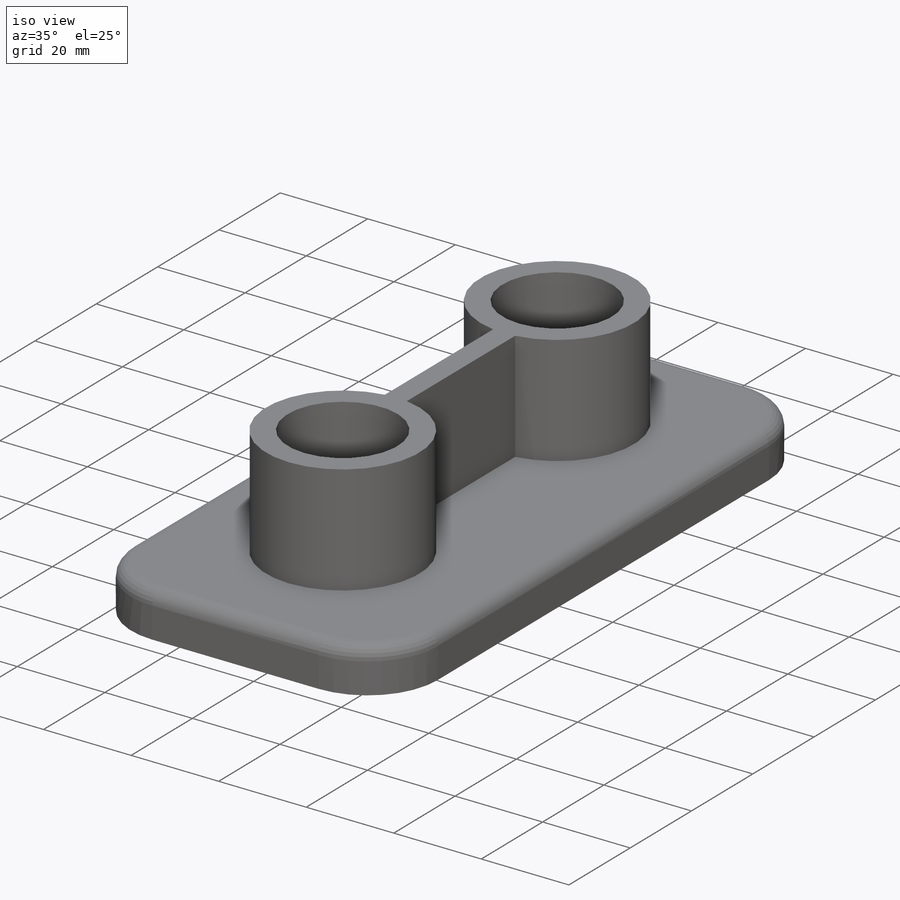
[diagram: iso view]
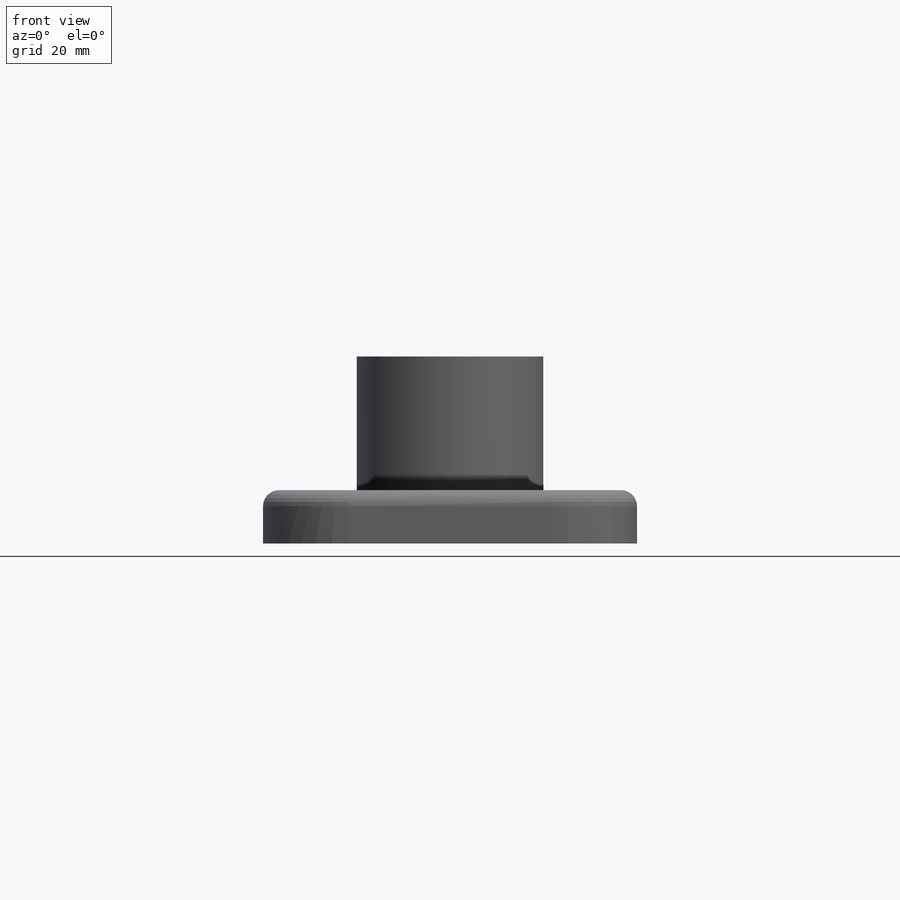
[diagram: front view]
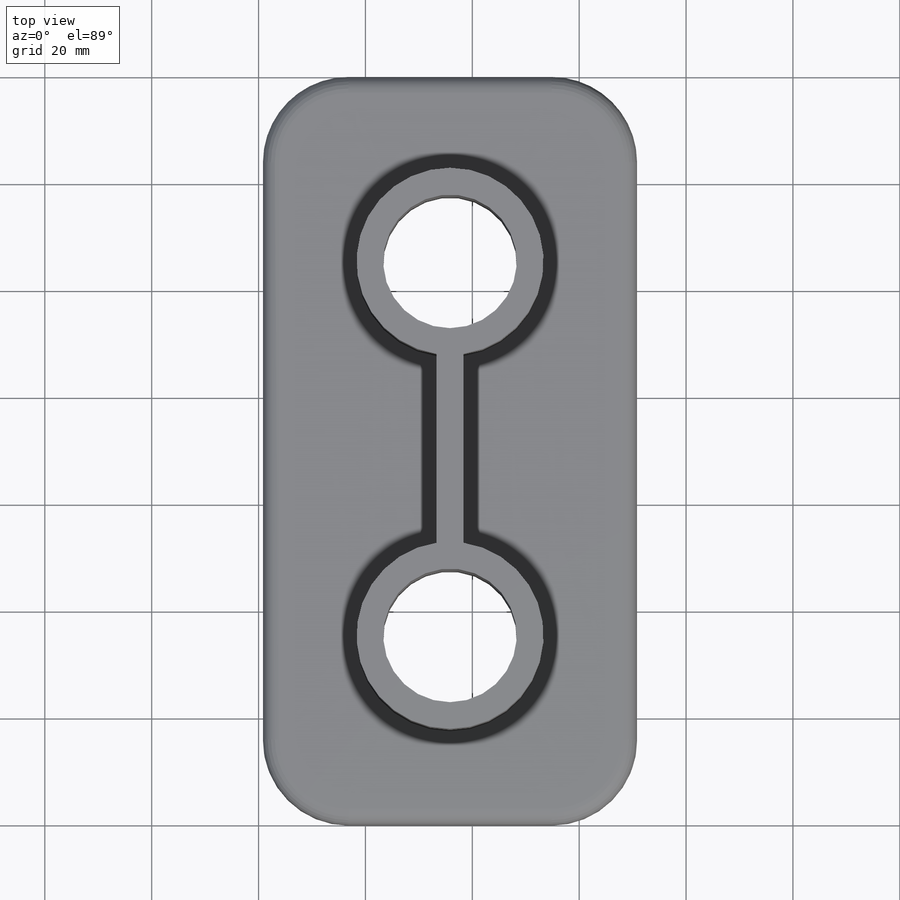
[diagram: top view]
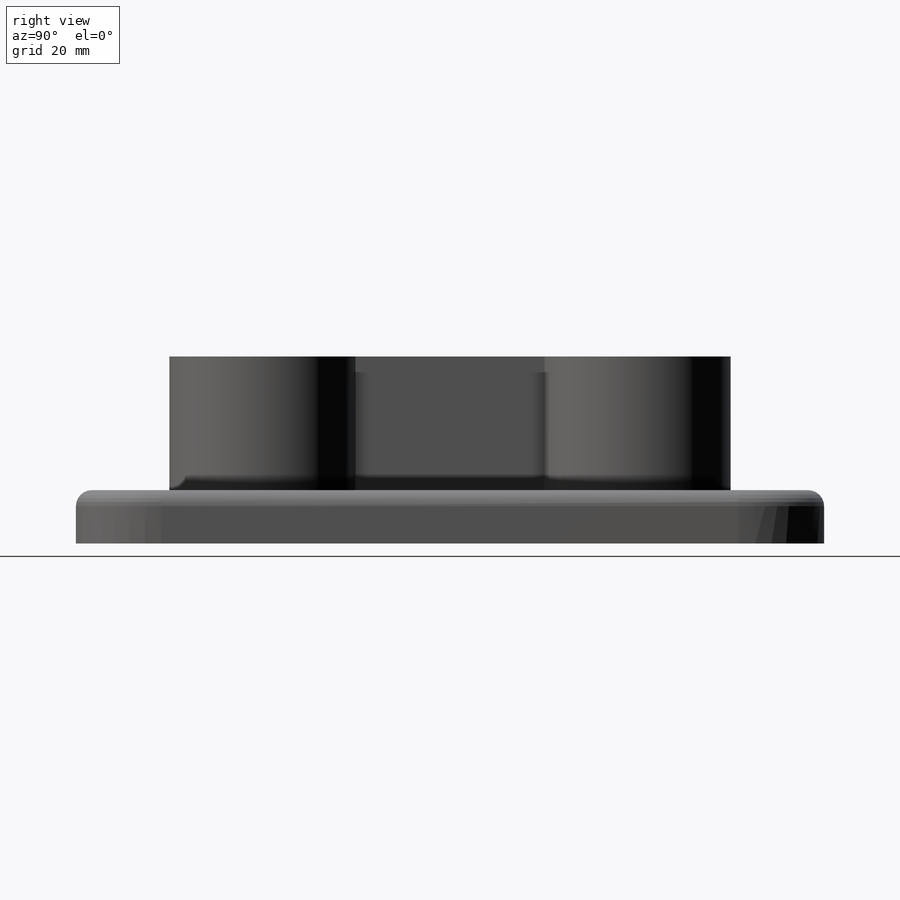
[diagram: right view]
SOLIDWORKS PART (.sldprt)
format: sldprt  version: not decoded by parser v0  size: 291,840 bytes
history: native  units: mm
features: sketch x7, extrude x4, plane x3, fillet x2, material x1, cut_extrude x1 + 3 further entries (+7 scaffold rows collapsed)
feature tree (28):
  scaffold x7  (default folders/planes/origin — collapsed)
  material  "재질 <지정안함>"
  "곡면 바디"
  "솔리드 바디"
  plane  "정면"
  plane  "윗면"
  plane  "우측면"
  "원점"
  sketch  "스케치2"  dims[D1=70.0mm D2=10.0mm]
  extrude  "보스-돌출1"  Depth=140mm
  sketch  "스케치8"  dims[c1.D1=35.0mm c1.D4=35.0mm c2.D1=~176.858292mm c2.D2=35.0mm c2.D3=35.0mm c2.D5=~12.402817mm c2.2.5=2.5mm c3.D2=2.5mm]
  extrude  "보스-돌출3"  Depth=25mm
  sketch  "스케치9"  dims[c1.D1=2.5mm c1.D2=2.5mm c2.D1=~89.858196mm c3.D1=25.0mm c3.D5=2.5mm c3.D6=2.5mm c3.D7=5.0mm]
  sketch  "스케치10"  dims[c1.D1=~21.424248mm c1.D2=25.0mm c1.D3=25.0mm c2.D1=25.0mm c2.D2=25.0mm c3.D1=~72.038497mm]
  cut_extrude  "컷-돌출1"  Depth=94mm
  fillet  "필렛1"  Radius=16mm
  fillet  "필렛2"  Radius=3mm
  sketch  "스케치4"  dims[c1.D3=35.0mm c1.D4=35.0mm c1.D1=35.0mm c1.D2=35.0mm c1.D5=2.5mm c1.D6=2.5mm c1.D7=2.5mm c2.D1=0.0mm c2.D2=0.0mm]
  extrude  "보스-돌출2"  Depth=25mm
  sketch  "스케치5"  dims[c1.D1=2.5mm c1.D2=2.5mm c2.D1=5.0mm c2.D2=70.0mm c2.D3=70.0mm c3.D1=70.0mm]
  extrude  "돌출-얇게1"  Depth=25mm
  sketch  "스케치6"
decode coverage: 13 of 14 modeling features carry decoded parameters; 3 rows unclassified (native names shown)
note: ~ marks probable driven/reference dimensions
note: suppression state not decoded; provenance and decode notes live in map.json
